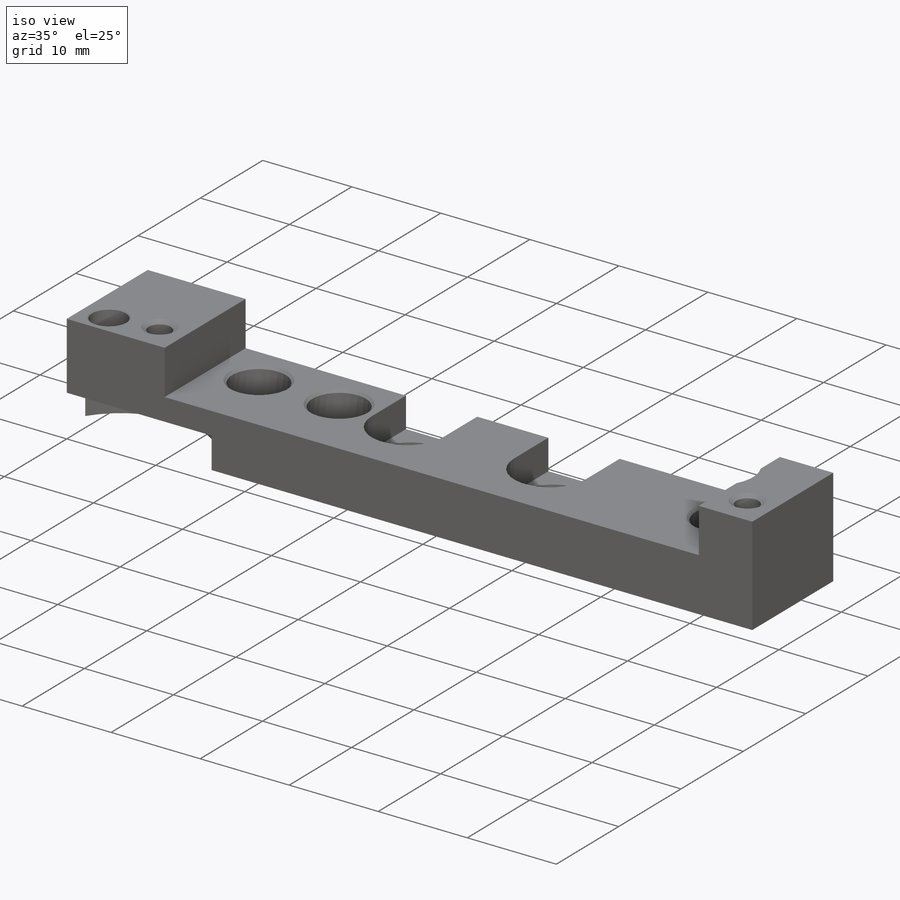
[diagram: iso view]
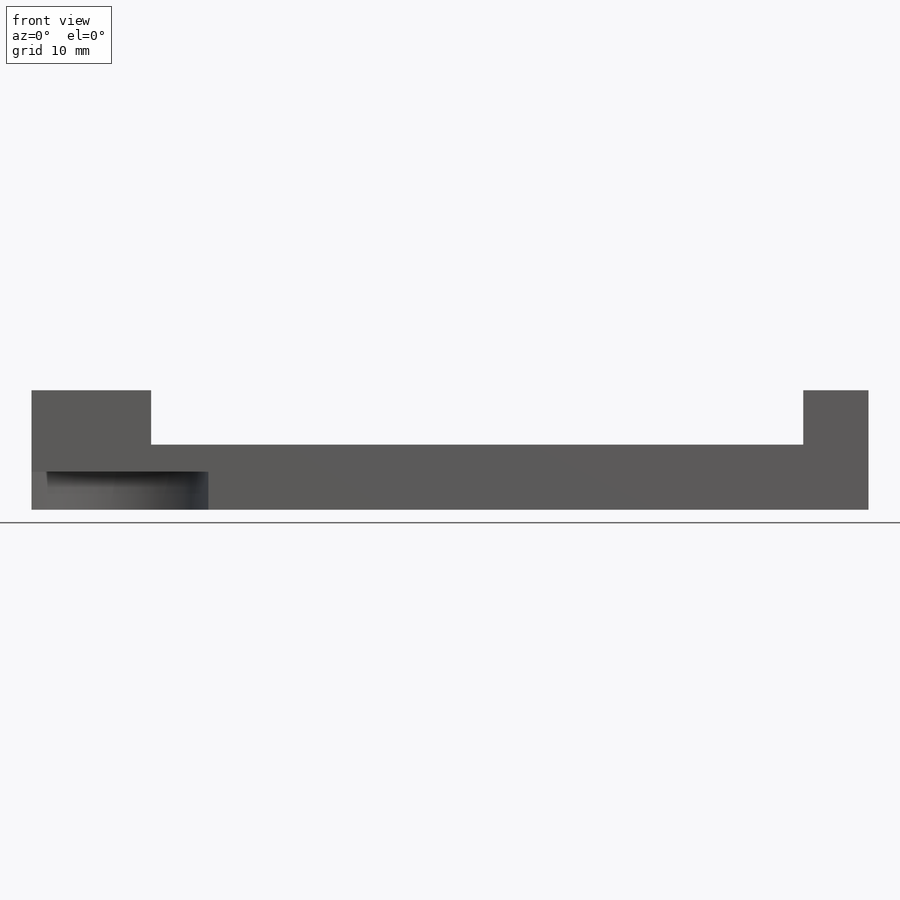
[diagram: front view]
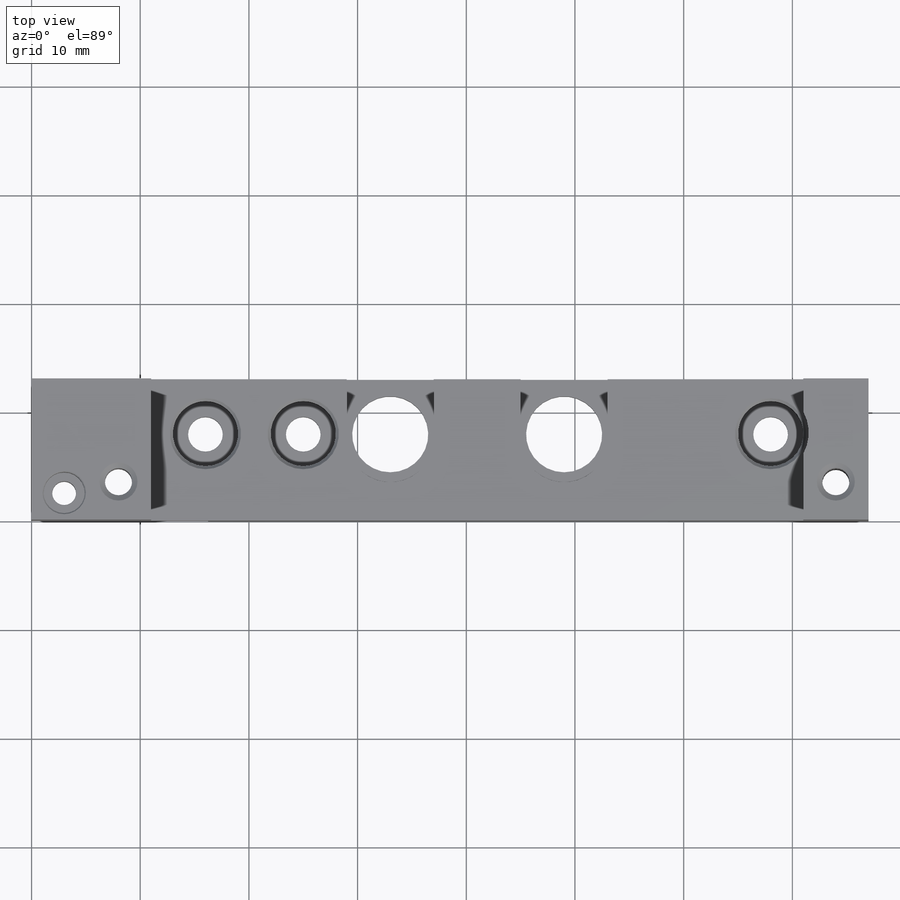
[diagram: top view]
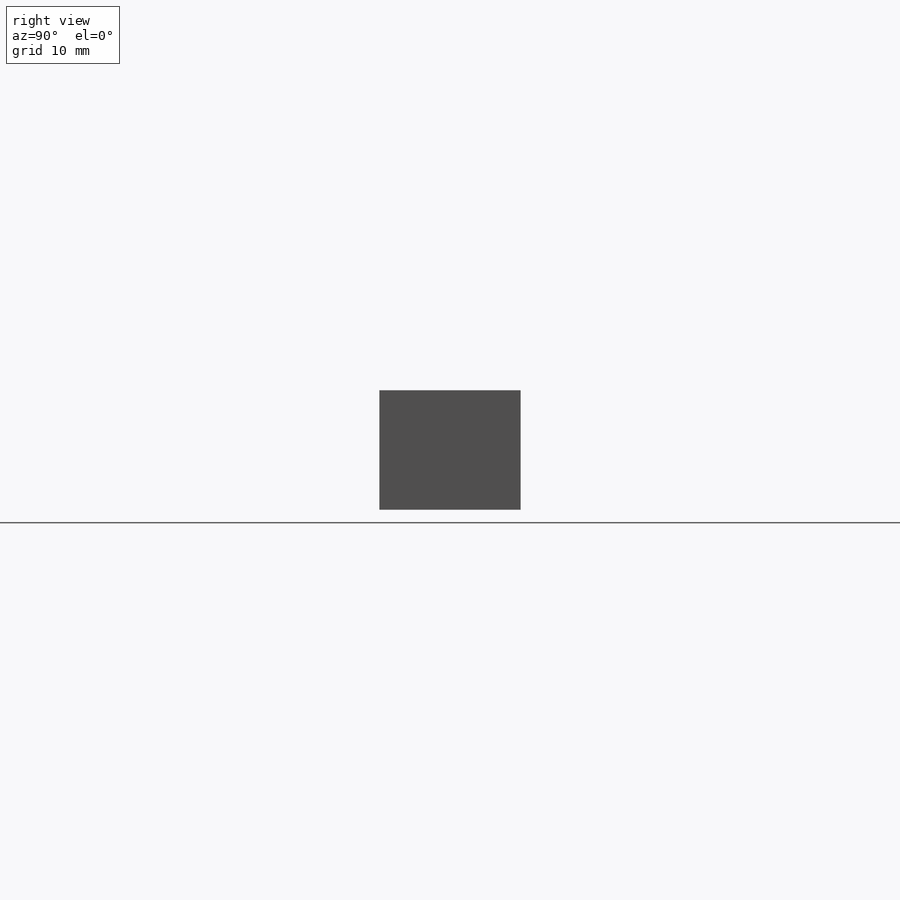
[diagram: right view]
SOLIDWORKS PART (.sldprt)
format: sldprt  version: not decoded by parser v0  size: 439,808 bytes
history: native  units: mm
features: sketch x12, cut_extrude x5, plane x3, hole x3, thread x2, material x1, extrude x1 (+13 scaffold rows collapsed)
feature tree (40):
  scaffold x13  (default folders/planes/origin — collapsed)
  material  "2024-T4"
  plane  "Спереди"
  plane  "Сверху"
  plane  "Справа"
  sketch  "Эскиз1"  dims[D1=13.0mm D2=11.0mm]
  extrude  "Бобышка-Вытянуть1"  Depth=77mm
  sketch  "Эскиз2"  dims[c1.D1=60.0mm c1.D2=6.0mm c1.D3=6.0mm c2.D2=6.0mm]
  cut_extrude  "Вырез-Вытянуть1"  [1 undecoded]
  sketch  "Эскиз5"  dims[c1.D1=4.0mm c1.D3=3.5mm c1.D2=0.5mm c2.D3=5.0mm]
  cut_extrude  "Вырез-Вытянуть2"  [1 undecoded]
  hole  "Цековка для винта с внутренним шестигранником M31"  [1 undecoded]
  sketch  "Эскиз4"  dims[D1=3.0mm D2=55.0mm D3=5.0mm D4=46.0mm]
  sketch  "Эскиз3"  dims[hole-wizard template sketch: 28 standard entries collapsed; hole parameters kept: c8.Диаметр сквозного отверстия=3.2mm c8.Глубина сквозного отверстия=6.0mm c8.Диаметр цековки=6.0mm c8.Глубина цековки=3.4mm c8.Диаметр передней зенковки=6.55mm c8.D6=~4.444873mm c8.Угол передней зенковки=90.0deg c8.Диаметр средней зенковки=3.25mm c8.D8=~4.444873mm c8.Угол средней зенковки=90.0deg c8.Диаметр задней зенковки=3.25mm c8.D10=~8.980256mm c8.Угол задней зенковки=90.0deg]
  sketch  "Эскиз8"  dims[c1.D1=9.0mm c1.D3=9.0mm c1.D2=7.0mm c2.D3=2.5mm c2.D2=6.0mm c3.D3=3.5mm c3.D4=8.0mm]
  cut_extrude  "Вырез-Вытянуть3"  Depth=3.5mm
  sketch  "Эскиз9"  dims[c1.D2=4.0mm c1.D3=4.0mm c1.D1=8.0mm c2.D2=16.0mm c2.D3=22.0mm c2.D4=9.5mm]
  cut_extrude  "Вырез-Вытянуть5"  Depth=3.4mm
  hole  "Отверстие обработанное метчиком M32"  [1 undecoded]
  sketch  "Эскиз7"  dims[D1=3.0mm D2=3.0mm D3=9.5mm]
  sketch  "Эскиз6"  dims[hole-wizard template sketch: 47 standard entries collapsed; hole parameters kept: c15.Глубина проходного сверла=7.5mm c15.Диаметр передней зенковки=3.5mm c15.D4=~3.666174mm c15.Угол передней зенковки=110.0deg c15.Диаметр задней зенковки=3.5mm c15.D6=~9.919017mm c15.Угол задней зенковки=110.0deg]
  thread  "Отверстие резьбы1"  Diameter=3mm  [1 undecoded]
  thread  "Отверстие резьбы2"  Diameter=3mm  [1 undecoded]
  hole  "Цековка для винта с внутренним шестигранником M21"  [1 undecoded]
  sketch  "Эскиз11"  dims[c1.D1=2.5mm c1.D2=10.5mm c2.D1=8.0mm]
  sketch  "Эскиз10"  dims[hole-wizard template sketch: 28 standard entries collapsed; hole parameters kept: c8.Диаметр сквозного отверстия=2.2mm c8.Глубина сквозного отверстия=7.5mm c8.Диаметр цековки=3.8mm c8.Глубина цековки=3.5mm c8.Диаметр передней зенковки=4.0mm c8.D6=~4.444873mm c8.Угол передней зенковки=90.0deg c8.Диаметр средней зенковки=2.25mm c8.D8=~4.444873mm c8.Угол средней зенковки=90.0deg c8.Диаметр задней зенковки=2.25mm c8.D10=~8.980256mm c8.Угол задней зенковки=90.0deg]
  sketch  "Эскиз12"  dims[c1.D2=~6.854735mm c1.D3=~6.854735mm c1.D4=7.0mm c1.D1=5.0mm c2.D2=16.0mm c2.D3=22.0mm]
  cut_extrude  "Вырез-Вытянуть6"  Depth=10mm
decode coverage: 18 of 23 modeling features carry decoded parameters
note: ~ marks probable driven/reference dimensions
note: 7 parameter values undecoded
summary: no parameter record found for 5 features
note: suppression state not decoded; provenance and decode notes live in map.json
